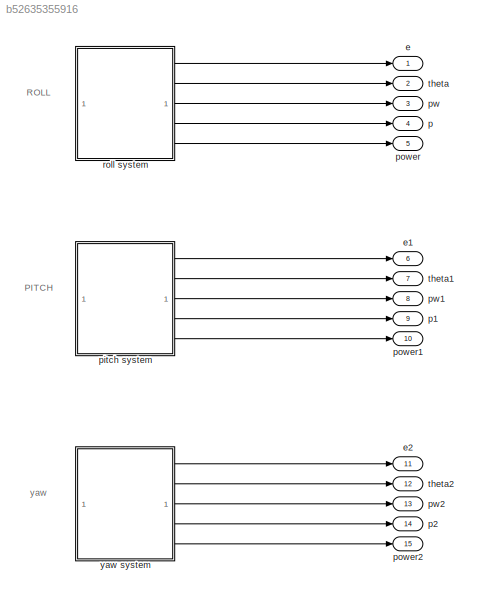
MODEL slx_b52635355916
KIND model
CONFIG AbsTol = auto
CONFIG EnableMultiTasking = off
CONFIG FixedStep = auto
CONFIG MaxStep = auto
CONFIG MinStep = auto
CONFIG RelTol = 1e-3
CONFIG SampleTimeConstraint = Unconstrained
CONFIG SolverName = VariableStepAuto
CONFIG StartTime = 0.0
CONFIG StopTime = 10.0
BLOCK [Outport] e
BLOCK [Outport] e1
  Port = 6
BLOCK [Outport] e2
  Port = 11
BLOCK [Outport] p
  Port = 4
BLOCK [Outport] p1
  Port = 9
BLOCK [Outport] p2
  Port = 14
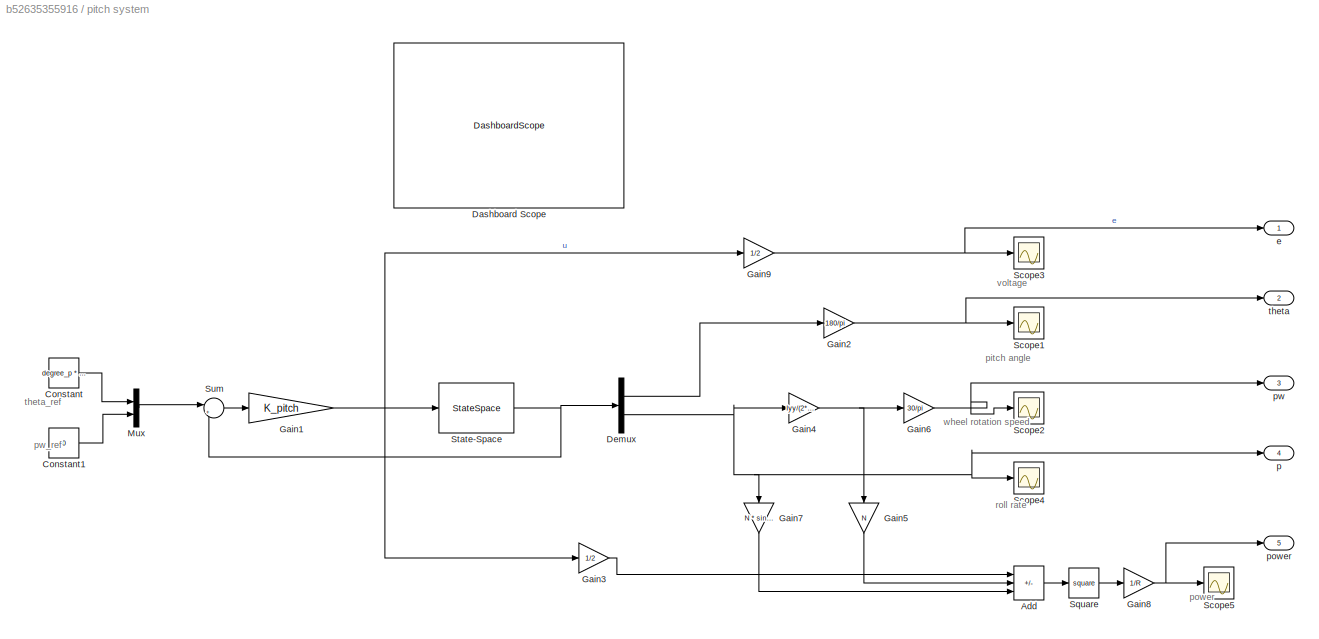
BLOCK [SubSystem] pitch system
BLOCK [Sum] pitch system/Add
  IconShape = rectangular
  Inputs = ++-
BLOCK [Constant] pitch system/Constant
  Value = degree_p * pi/180
BLOCK [Constant] pitch system/Constant1
  Value = 0
BLOCK [DashboardScope] pitch system/Dashboard Scope
BLOCK [Demux] pitch system/Demux
  Outputs = 2
BLOCK [Gain] pitch system/Gain1
  Gain = K_pitch
  Multiplication = Matrix(K*u) (u vector)
BLOCK [Gain] pitch system/Gain2
  Gain = 180/pi
BLOCK [Gain] pitch system/Gain3
  Gain = 1/2
BLOCK [Gain] pitch system/Gain4
  Gain = Iyy/(2*Iw_pitch*sin(beta))
BLOCK [Gain] pitch system/Gain5
  Gain = N
  NameLocation = left
BLOCK [Gain] pitch system/Gain6
  Gain = 30/pi
BLOCK [Gain] pitch system/Gain7
  Gain = N * sin(beta)
  NameLocation = left
BLOCK [Gain] pitch system/Gain8
  Gain = 1/R
BLOCK [Gain] pitch system/Gain9
  Gain = 1/2
BLOCK [Mux] pitch system/Mux
  DisplayOption = bar
  Inputs = 2
BLOCK [Scope] pitch system/Scope1
  Floating = off
  NumInputPorts = 1
  ScopeSpecificationString = Simulink.scopes.TimeScopeBlockCfg('CurrentConfiguration', extmgr.ConfigurationSet(extmgr.Configuration('Core','General UI',true),extmgr.Configuration('Core','Source UI',true),extmgr.Configuration('Sources','WiredSimulink',true,'DataLoggingVariableName','ScopeData1'),extmgr.Configuration('Visuals','Time Domain',true,'SerializedDisplays',{struct('MinYLimReal','-3.91018','MaxYLimReal','35.19163','YLa...<+1368ch>
BLOCK [Scope] pitch system/Scope2
  Floating = off
  NumInputPorts = 1
  ScopeSpecificationString = Simulink.scopes.TimeScopeBlockCfg('CurrentConfiguration', extmgr.ConfigurationSet(extmgr.Configuration('Core','General UI',true),extmgr.Configuration('Core','Source UI',true),extmgr.Configuration('Sources','WiredSimulink',true,'DataLoggingVariableName','ScopeData2'),extmgr.Configuration('Visuals','Time Domain',true,'SerializedDisplays',{struct('MinYLimReal','-15.97435','MaxYLimReal','104.27597','Y...<+1407ch>
BLOCK [Scope] pitch system/Scope3
  Floating = off
  NumInputPorts = 1
  ScopeSpecificationString = Simulink.scopes.TimeScopeBlockCfg('CurrentConfiguration', extmgr.ConfigurationSet(extmgr.Configuration('Core','General UI',true),extmgr.Configuration('Core','Source UI',true),extmgr.Configuration('Sources','WiredSimulink',true,'DataLoggingVariableName','ScopeData3'),extmgr.Configuration('Visuals','Time Domain',true,'SerializedDisplays',{struct('MinYLimReal','-3612.14009','MaxYLimReal','12508.4628'...<+1413ch>
BLOCK [Scope] pitch system/Scope4
  Floating = off
  NumInputPorts = 1
  ScopeSpecificationString = Simulink.scopes.TimeScopeBlockCfg('CurrentConfiguration', extmgr.ConfigurationSet(extmgr.Configuration('Core','General UI',true),extmgr.Configuration('Core','Source UI',true),extmgr.Configuration('Sources','WiredSimulink',true,'DataLoggingVariableName','ScopeData4'),extmgr.Configuration('Visuals','Time Domain',true,'SerializedDisplays',{struct('MinYLimReal','-0.0478','MaxYLimReal','0.31199','YLabe...<+1397ch>
BLOCK [Scope] pitch system/Scope5
  Floating = off
  NumInputPorts = 1
  ScopeSpecificationString = Simulink.scopes.TimeScopeBlockCfg('CurrentConfiguration', extmgr.ConfigurationSet(extmgr.Configuration('Core','General UI',true),extmgr.Configuration('Core','Source UI',true),extmgr.Configuration('Sources','WiredSimulink',true),extmgr.Configuration('Visuals','Time Domain',true,'SerializedDisplays',{struct('MinYLimReal','-1715011.51762','MaxYLimReal','106666678.75176','YLabelReal','','MinYLimMag','...<+1480ch>
BLOCK [Math] pitch system/Square
  Operator = square
BLOCK [StateSpace] pitch system/State-Space
  A = A_pitch
  B = B_pitch
  C = eye(2)
  D = [0;0]
  InitialCondition = [0 0]
BLOCK [Sum] pitch system/Sum
  Inputs = |+-
BLOCK [Outport] pitch system/e
BLOCK [Outport] pitch system/p
  Port = 4
BLOCK [Outport] pitch system/power
  Port = 5
BLOCK [Outport] pitch system/pw
  Port = 3
BLOCK [Outport] pitch system/theta
  Port = 2
BLOCK [Outport] power
  Port = 5
BLOCK [Outport] power1
  Port = 10
BLOCK [Outport] power2
  Port = 15
BLOCK [Outport] pw
  Port = 3
BLOCK [Outport] pw1
  Port = 8
BLOCK [Outport] pw2
  Port = 13
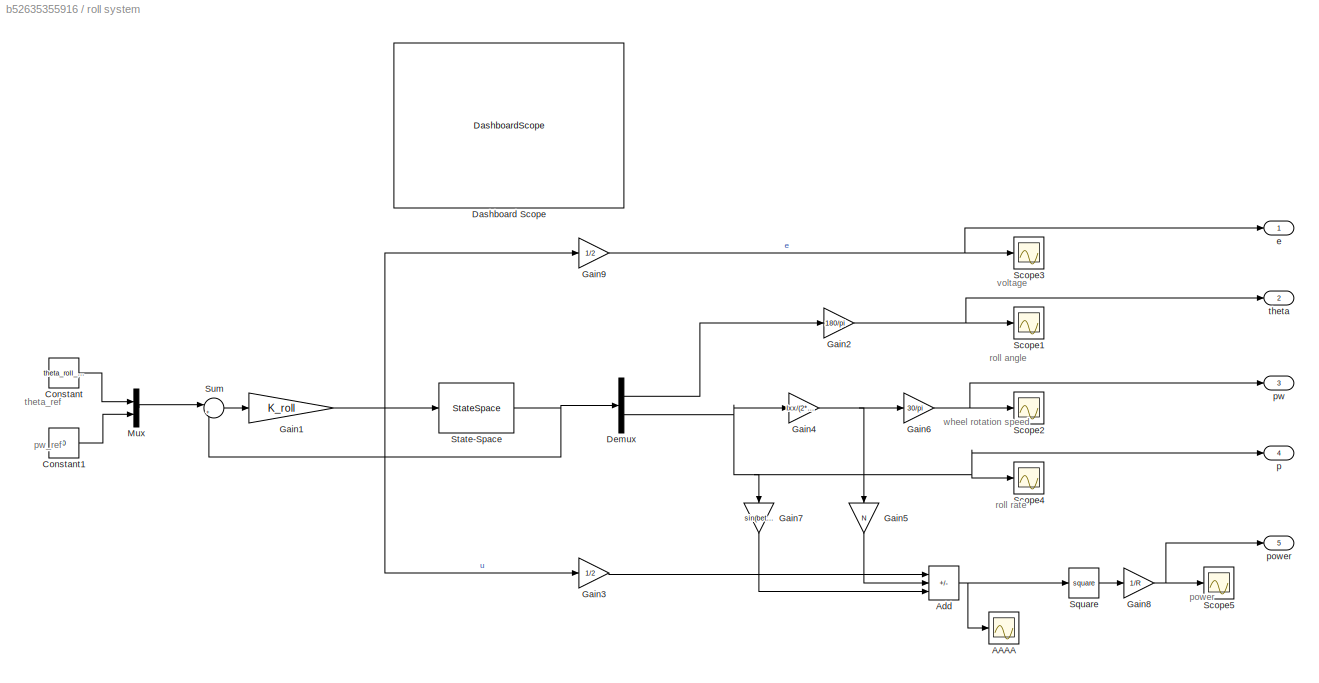
BLOCK [SubSystem] roll system
BLOCK [Scope] roll system/AAAA
  Floating = off
  NumInputPorts = 1
  ScopeSpecificationString = Simulink.scopes.TimeScopeBlockCfg('CurrentConfiguration', extmgr.ConfigurationSet(extmgr.Configuration('Core','General UI',true),extmgr.Configuration('Core','Source UI',true),extmgr.Configuration('Sources','WiredSimulink',true,'DataLoggingVariableName','ScopeData1'),extmgr.Configuration('Visuals','Time Domain',true,'SerializedDisplays',{struct('MinYLimReal','-3490.74463','MaxYLimReal','13245.43592...<+1452ch>
BLOCK [Sum] roll system/Add
  IconShape = rectangular
  Inputs = ++-
BLOCK [Constant] roll system/Constant
  Value = theta_roll_final
BLOCK [Constant] roll system/Constant1
  Value = 0
BLOCK [DashboardScope] roll system/Dashboard Scope
BLOCK [Demux] roll system/Demux
  Outputs = 2
BLOCK [Gain] roll system/Gain1
  Gain = K_roll
  Multiplication = Matrix(K*u) (u vector)
BLOCK [Gain] roll system/Gain2
  Gain = 180/pi
BLOCK [Gain] roll system/Gain3
  Gain = 1/2
BLOCK [Gain] roll system/Gain4
  Gain = Ixx/(2*Iw_roll*sin(beta))
BLOCK [Gain] roll system/Gain5
  Gain = N
  NameLocation = left
BLOCK [Gain] roll system/Gain6
  Gain = 30/pi
BLOCK [Gain] roll system/Gain7
  Gain = sin(beta) * N
  NameLocation = left
BLOCK [Gain] roll system/Gain8
  Gain = 1/R
BLOCK [Gain] roll system/Gain9
  Gain = 1/2
BLOCK [Mux] roll system/Mux
  DisplayOption = bar
  Inputs = 2
BLOCK [Scope] roll system/Scope1
  Floating = off
  NumInputPorts = 1
  ScopeSpecificationString = Simulink.scopes.TimeScopeBlockCfg('CurrentConfiguration', extmgr.ConfigurationSet(extmgr.Configuration('Core','General UI',true),extmgr.Configuration('Core','Source UI',true),extmgr.Configuration('Sources','WiredSimulink',true,'DataLoggingVariableName','ScopeData1'),extmgr.Configuration('Visuals','Time Domain',true,'SerializedDisplays',{struct('MinYLimReal','-0.27062','MaxYLimReal','2.43555','YLab...<+1398ch>
BLOCK [Scope] roll system/Scope2
  Floating = off
  NumInputPorts = 1
  ScopeSpecificationString = Simulink.scopes.TimeScopeBlockCfg('CurrentConfiguration', extmgr.ConfigurationSet(extmgr.Configuration('Core','General UI',true),extmgr.Configuration('Core','Source UI',true),extmgr.Configuration('Sources','WiredSimulink',true,'DataLoggingVariableName','ScopeData2'),extmgr.Configuration('Visuals','Time Domain',true,'SerializedDisplays',{struct('MinYLimReal','-19.00799','MaxYLimReal','124.26732','Y...<+1407ch>
BLOCK [Scope] roll system/Scope3
  Floating = off
  NumInputPorts = 1
  ScopeSpecificationString = Simulink.scopes.TimeScopeBlockCfg('CurrentConfiguration', extmgr.ConfigurationSet(extmgr.Configuration('Core','General UI',true),extmgr.Configuration('Core','Source UI',true),extmgr.Configuration('Sources','WiredSimulink',true,'DataLoggingVariableName','ScopeData3'),extmgr.Configuration('Visuals','Time Domain',true,'SerializedDisplays',{struct('MinYLimReal','15.01392','MaxYLimReal','15.80688','YLa...<+1395ch>
BLOCK [Scope] roll system/Scope4
  Floating = off
  NumInputPorts = 1
  ScopeSpecificationString = Simulink.scopes.TimeScopeBlockCfg('CurrentConfiguration', extmgr.ConfigurationSet(extmgr.Configuration('Core','General UI',true),extmgr.Configuration('Core','Source UI',true),extmgr.Configuration('Sources','WiredSimulink',true,'DataLoggingVariableName','ScopeData4'),extmgr.Configuration('Visuals','Time Domain',true,'SerializedDisplays',{struct('MinYLimReal','-0.08531','MaxYLimReal','0.55771','YLab...<+1399ch>
BLOCK [Scope] roll system/Scope5
  Floating = off
  NumInputPorts = 1
  ScopeSpecificationString = Simulink.scopes.TimeScopeBlockCfg('CurrentConfiguration', extmgr.ConfigurationSet(extmgr.Configuration('Core','General UI',true),extmgr.Configuration('Core','Source UI',true),extmgr.Configuration('Sources','WiredSimulink',true),extmgr.Configuration('Visuals','Time Domain',true,'SerializedDisplays',{struct('MinYLimReal','10.59086','MaxYLimReal','175392731.36875','YLabelReal','','MinYLimMag','10.590...<+1461ch>
BLOCK [Math] roll system/Square
  Operator = square
BLOCK [StateSpace] roll system/State-Space
  A = A_roll
  B = B_roll
  C = eye(2)
  D = [0;0]
  InitialCondition = [0 0]
BLOCK [Sum] roll system/Sum
  Inputs = |+-
BLOCK [Outport] roll system/e
BLOCK [Outport] roll system/p
  Port = 4
BLOCK [Outport] roll system/power
  Port = 5
BLOCK [Outport] roll system/pw
  Port = 3
BLOCK [Outport] roll system/theta
  Port = 2
BLOCK [Outport] theta
  Port = 2
BLOCK [Outport] theta1
  Port = 7
BLOCK [Outport] theta2
  Port = 12
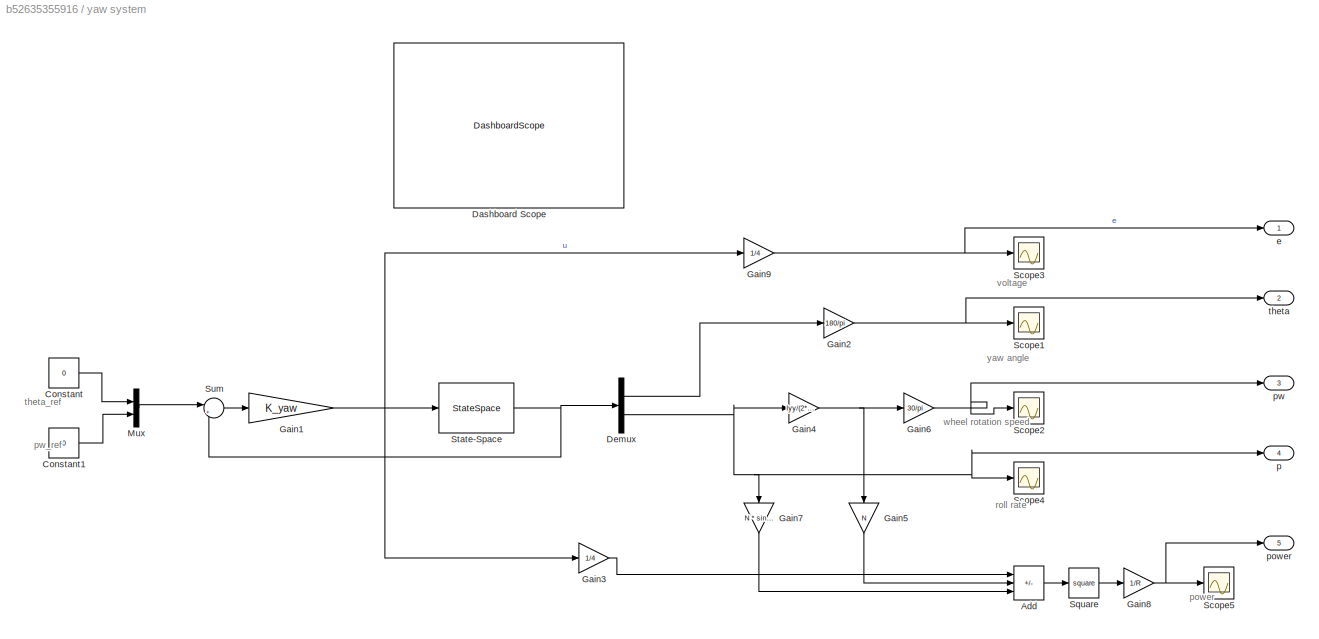
BLOCK [SubSystem] yaw system
BLOCK [Sum] yaw system/Add
  IconShape = rectangular
  Inputs = ++-
BLOCK [Constant] yaw system/Constant
  Value = 0
BLOCK [Constant] yaw system/Constant1
  Value = 0
BLOCK [DashboardScope] yaw system/Dashboard Scope
BLOCK [Demux] yaw system/Demux
  Outputs = 2
BLOCK [Gain] yaw system/Gain1
  Gain = K_yaw
  Multiplication = Matrix(K*u) (u vector)
BLOCK [Gain] yaw system/Gain2
  Gain = 180/pi
BLOCK [Gain] yaw system/Gain3
  Gain = 1/4
BLOCK [Gain] yaw system/Gain4
  Gain = Iyy/(2*(Iw_pitch + Iw_roll)*cos(beta))
BLOCK [Gain] yaw system/Gain5
  Gain = N
  NameLocation = left
BLOCK [Gain] yaw system/Gain6
  Gain = 30/pi
BLOCK [Gain] yaw system/Gain7
  Gain = N * sin(beta)
  NameLocation = left
BLOCK [Gain] yaw system/Gain8
  Gain = 1/R
BLOCK [Gain] yaw system/Gain9
  Gain = 1/4
BLOCK [Mux] yaw system/Mux
  DisplayOption = bar
  Inputs = 2
BLOCK [Scope] yaw system/Scope1
  Floating = off
  NumInputPorts = 1
  ScopeSpecificationString = Simulink.scopes.TimeScopeBlockCfg('CurrentConfiguration', extmgr.ConfigurationSet(extmgr.Configuration('Core','General UI',true),extmgr.Configuration('Core','Source UI',true),extmgr.Configuration('Sources','WiredSimulink',true,'DataLoggingVariableName','ScopeData1'),extmgr.Configuration('Visuals','Time Domain',true,'SerializedDisplays',{struct('MinYLimReal','-0.00571','MaxYLimReal','0.0386','YLabe...<+1463ch>
BLOCK [Scope] yaw system/Scope2
  Floating = off
  NumInputPorts = 1
  ScopeSpecificationString = Simulink.scopes.TimeScopeBlockCfg('CurrentConfiguration', extmgr.ConfigurationSet(extmgr.Configuration('Core','General UI',true),extmgr.Configuration('Core','Source UI',true),extmgr.Configuration('Sources','WiredSimulink',true,'DataLoggingVariableName','ScopeData2'),extmgr.Configuration('Visuals','Time Domain',true,'SerializedDisplays',{struct('MinYLimReal','-0.11972','MaxYLimReal','0.30994','YLab...<+1419ch>
BLOCK [Scope] yaw system/Scope3
  Floating = off
  NumInputPorts = 1
  ScopeSpecificationString = Simulink.scopes.TimeScopeBlockCfg('CurrentConfiguration', extmgr.ConfigurationSet(extmgr.Configuration('Core','General UI',true),extmgr.Configuration('Core','Source UI',true),extmgr.Configuration('Sources','WiredSimulink',true,'DataLoggingVariableName','ScopeData3'),extmgr.Configuration('Visuals','Time Domain',true,'SerializedDisplays',{struct('MinYLimReal','-38.41528','MaxYLimReal','6.42128','YLa...<+1424ch>
BLOCK [Scope] yaw system/Scope4
  Floating = off
  NumInputPorts = 1
  ScopeSpecificationString = Simulink.scopes.TimeScopeBlockCfg('CurrentConfiguration', extmgr.ConfigurationSet(extmgr.Configuration('Core','General UI',true),extmgr.Configuration('Core','Source UI',true),extmgr.Configuration('Sources','WiredSimulink',true,'DataLoggingVariableName','ScopeData4'),extmgr.Configuration('Visuals','Time Domain',true,'SerializedDisplays',{struct('MinYLimReal','-0.00045','MaxYLimReal','0.00116','YLab...<+1421ch>
BLOCK [Scope] yaw system/Scope5
  Floating = off
  NumInputPorts = 1
  ScopeSpecificationString = Simulink.scopes.TimeScopeBlockCfg('CurrentConfiguration', extmgr.ConfigurationSet(extmgr.Configuration('Core','General UI',true),extmgr.Configuration('Core','Source UI',true),extmgr.Configuration('Sources','WiredSimulink',true),extmgr.Configuration('Visuals','Time Domain',true,'SerializedDisplays',{struct('MinYLimReal','-25359.88985','MaxYLimReal','24576.55164','YLabelReal','','MinYLimMag','   0.0...<+1429ch>
BLOCK [Math] yaw system/Square
  Operator = square
BLOCK [StateSpace] yaw system/State-Space
  A = A_yaw
  B = B_yaw
  C = eye(2)
  D = [0;0]
  InitialCondition = [o0 w0]
  ParameterTunability = Unconstrained
BLOCK [Sum] yaw system/Sum
  Inputs = |+-
BLOCK [Outport] yaw system/e
BLOCK [Outport] yaw system/p
  Port = 4
BLOCK [Outport] yaw system/power
  Port = 5
BLOCK [Outport] yaw system/pw
  Port = 3
BLOCK [Outport] yaw system/theta
  Port = 2
ANNOTATION (root): PITCH
ANNOTATION (root): ROLL
ANNOTATION (root): yaw
ANNOTATION pitch system: pitch angle
ANNOTATION pitch system: power
ANNOTATION pitch system: pw_ref
ANNOTATION pitch system: roll rate
ANNOTATION pitch system: theta_ref
ANNOTATION pitch system: voltage
ANNOTATION pitch system: wheel rotation speed
ANNOTATION roll system: power
ANNOTATION roll system: pw_ref
ANNOTATION roll system: roll angle
ANNOTATION roll system: roll rate
ANNOTATION roll system: theta_ref
ANNOTATION roll system: voltage
ANNOTATION roll system: wheel rotation speed
ANNOTATION yaw system: power
ANNOTATION yaw system: pw_ref
ANNOTATION yaw system: roll rate
ANNOTATION yaw system: theta_ref
ANNOTATION yaw system: voltage
ANNOTATION yaw system: wheel rotation speed
ANNOTATION yaw system: yaw angle
LINE pitch system/Add:1 -> pitch system/Square:1
LINE pitch system/Constant1:1 -> pitch system/Mux:2
LINE pitch system/Constant:1 -> pitch system/Mux:1
LINE pitch system/Demux:1 -> pitch system/Gain2:1
NET pitch system/Demux:2 -> pitch system/Gain4:1, pitch system/Gain7:1, pitch system/Scope4:1, pitch system/p:1
NET pitch system/Gain1:1 -> pitch system/Gain3:1, pitch system/Gain9:1, pitch system/State-Space:1
NET pitch system/Gain2:1 -> pitch system/Scope1:1, pitch system/theta:1
LINE pitch system/Gain3:1 -> pitch system/Add:1
NET pitch system/Gain4:1 -> pitch system/Gain5:1, pitch system/Gain6:1
LINE pitch system/Gain5:1 -> pitch system/Add:2
NET pitch system/Gain6:1 -> pitch system/Scope2:1, pitch system/pw:1
LINE pitch system/Gain7:1 -> pitch system/Add:3
NET pitch system/Gain8:1 -> pitch system/Scope5:1, pitch system/power:1
NET pitch system/Gain9:1 -> pitch system/Scope3:1, pitch system/e:1
LINE pitch system/Mux:1 -> pitch system/Sum:1
LINE pitch system/Square:1 -> pitch system/Gain8:1
NET pitch system/State-Space:1 -> pitch system/Demux:1, pitch system/Sum:2
LINE pitch system/Sum:1 -> pitch system/Gain1:1
LINE pitch system:1 -> e1:1
LINE pitch system:2 -> theta1:1
LINE pitch system:3 -> pw1:1
LINE pitch system:4 -> p1:1
LINE pitch system:5 -> power1:1
NET roll system/Add:1 -> roll system/AAAA:1, roll system/Square:1
LINE roll system/Constant1:1 -> roll system/Mux:2
LINE roll system/Constant:1 -> roll system/Mux:1
LINE roll system/Demux:1 -> roll system/Gain2:1
NET roll system/Demux:2 -> roll system/Gain4:1, roll system/Gain7:1, roll system/Scope4:1, roll system/p:1
NET roll system/Gain1:1 -> roll system/Gain3:1, roll system/Gain9:1, roll system/State-Space:1
NET roll system/Gain2:1 -> roll system/Scope1:1, roll system/theta:1
LINE roll system/Gain3:1 -> roll system/Add:1
NET roll system/Gain4:1 -> roll system/Gain5:1, roll system/Gain6:1
LINE roll system/Gain5:1 -> roll system/Add:2
NET roll system/Gain6:1 -> roll system/Scope2:1, roll system/pw:1
LINE roll system/Gain7:1 -> roll system/Add:3
NET roll system/Gain8:1 -> roll system/Scope5:1, roll system/power:1
NET roll system/Gain9:1 -> roll system/Scope3:1, roll system/e:1
LINE roll system/Mux:1 -> roll system/Sum:1
LINE roll system/Square:1 -> roll system/Gain8:1
NET roll system/State-Space:1 -> roll system/Demux:1, roll system/Sum:2
LINE roll system/Sum:1 -> roll system/Gain1:1
LINE roll system:1 -> e:1
LINE roll system:2 -> theta:1
LINE roll system:3 -> pw:1
LINE roll system:4 -> p:1
LINE roll system:5 -> power:1
LINE yaw system/Add:1 -> yaw system/Square:1
LINE yaw system/Constant1:1 -> yaw system/Mux:2
LINE yaw system/Constant:1 -> yaw system/Mux:1
LINE yaw system/Demux:1 -> yaw system/Gain2:1
NET yaw system/Demux:2 -> yaw system/Gain4:1, yaw system/Gain7:1, yaw system/Scope4:1, yaw system/p:1
NET yaw system/Gain1:1 -> yaw system/Gain3:1, yaw system/Gain9:1, yaw system/State-Space:1
NET yaw system/Gain2:1 -> yaw system/Scope1:1, yaw system/theta:1
LINE yaw system/Gain3:1 -> yaw system/Add:1
NET yaw system/Gain4:1 -> yaw system/Gain5:1, yaw system/Gain6:1
LINE yaw system/Gain5:1 -> yaw system/Add:2
NET yaw system/Gain6:1 -> yaw system/Scope2:1, yaw system/pw:1
LINE yaw system/Gain7:1 -> yaw system/Add:3
NET yaw system/Gain8:1 -> yaw system/Scope5:1, yaw system/power:1
NET yaw system/Gain9:1 -> yaw system/Scope3:1, yaw system/e:1
LINE yaw system/Mux:1 -> yaw system/Sum:1
LINE yaw system/Square:1 -> yaw system/Gain8:1
NET yaw system/State-Space:1 -> yaw system/Demux:1, yaw system/Sum:2
LINE yaw system/Sum:1 -> yaw system/Gain1:1
LINE yaw system:1 -> e2:1
LINE yaw system:2 -> theta2:1
LINE yaw system:3 -> pw2:1
LINE yaw system:4 -> p2:1
LINE yaw system:5 -> power2:1
note: NET lines group one-source signal fan-out (src -> all destinations, sorted); 1:1 wires keep LINE
